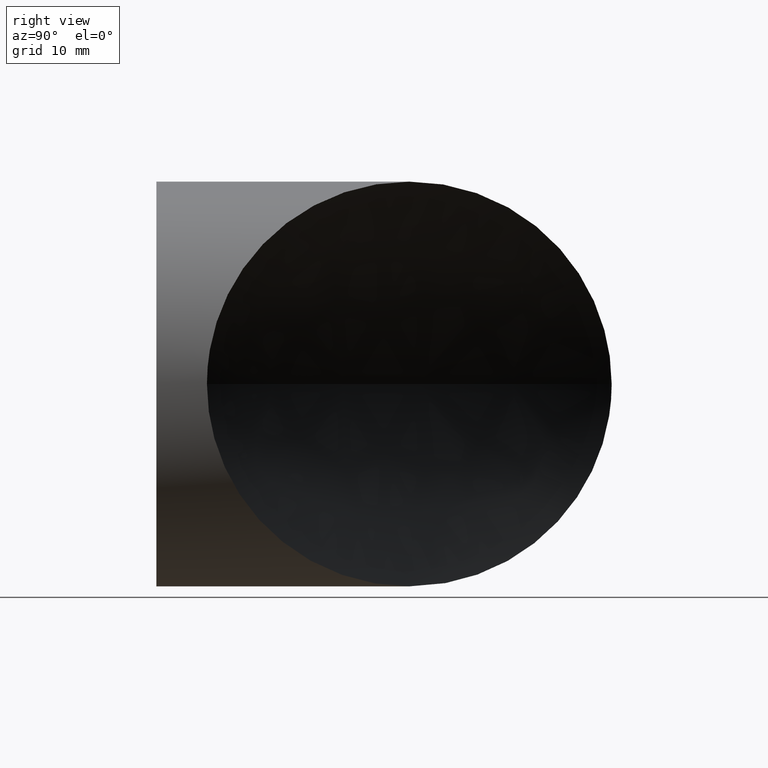
[diagram: clean part render]
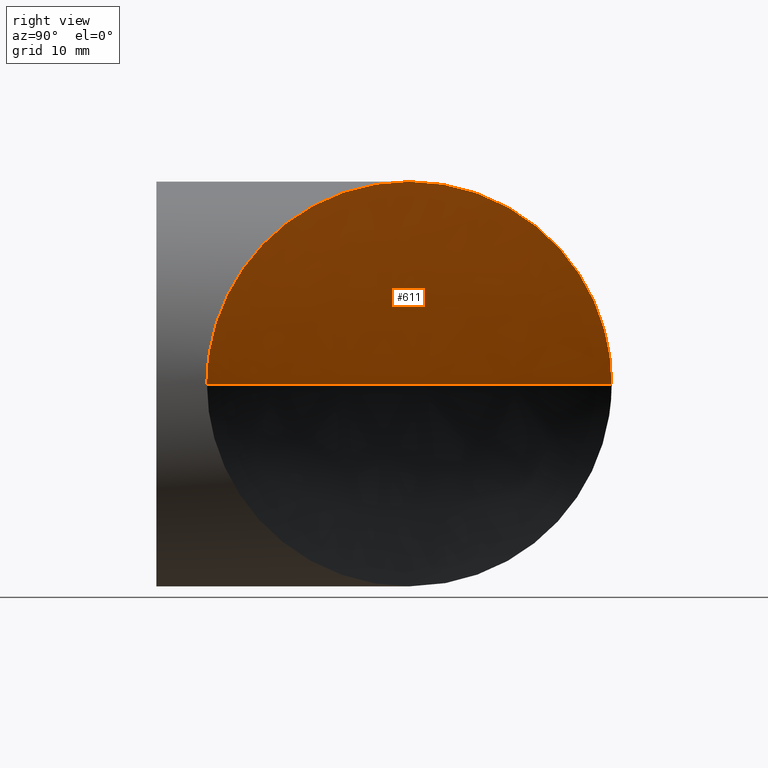
[diagram: same view with one face highlighted and labeled with its STEP entity id]
A machine part, right view. The second image highlights one B-rep face of the part: STEP entity #611.
In plain terms, the highlighted face is a freeform B-spline surface patch.
Its self-contained STEP definition (entity closure, byte-faithful):
#9 = B_SPLINE_CURVE_WITH_KNOTS ( 'NONE', 3,
 ( #354, #220, #367, #719, #223, #716, #96, #440, #579, #582, #493, #296, #651, #165, #859, #99, #105, #497, #161, #573, #168, #292, #29, #570, #435, #229, #442, #158, #37, #505, #854, #42 ),
 .UNSPECIFIED., .F., .F.,
 ( 4, 2, 2, 2, 2, 2, 2, 2, 2, 2, 2, 2, 2, 2, 2, 4 ),
 ( 0.04810272725894961660, 0.04960341340592316906, 0.05110409955289672151, 0.05410547184684383337, 0.05560615799381738583, 0.05710684414079093829, 0.06010821643473805015, 0.06160890258171160261, 0.06310958872868516201, 0.06611096102263225305, 0.07211370561052643513, 0.07811645019842061721, 0.08411919478631479929, 0.08712056708026189034, 0.09012193937420898138, 0.09612468396210317734 ),
 .UNSPECIFIED. ) ;
#29 = CARTESIAN_POINT ( 'NONE',  ( -13.85126286655956562, 45.60126286669613904, 21.34471803107064858 ) ) ;
#37 = CARTESIAN_POINT ( 'NONE',  ( -4.965716845980086447, 36.71571684611458153, 24.92019169298241721 ) ) ;
#42 = CARTESIAN_POINT ( 'NONE',  ( -3.679782173415781046E-12, 31.75000000013650236, 25.39999999999956160 ) ) ;
#44 = CARTESIAN_POINT ( 'NONE',  ( 15.75322996235737527, 15.99677003777224016, 19.94088469936381713 ) ) ;
#52 = FACE_OUTER_BOUND ( 'NONE', #759, .T. ) ;
#54 = CARTESIAN_POINT ( 'NONE',  ( 3.574495887741338418, 28.17550411239097485, 25.15748655172640724 ) ) ;
#96 = CARTESIAN_POINT ( 'NONE',  ( -24.91912955028560006, 56.66912955042496947, 5.016703429671586001 ) ) ;
#99 = CARTESIAN_POINT ( 'NONE',  ( -21.83922973555702995, 53.58922973569545434, 12.97751472815525453 ) ) ;
#105 = CARTESIAN_POINT ( 'NONE',  ( -21.60348923600461291, 53.35348923614303374, 13.36597650318335084 ) ) ;
#107 = CARTESIAN_POINT ( 'NONE',  ( 23.67062844458222770, 8.079371555545424854, 9.224653027086247903 ) ) ;
#117 = CARTESIAN_POINT ( 'NONE',  ( 17.59307431041942138, 14.15692568970981036, 18.39065751051364117 ) ) ;
#120 = CARTESIAN_POINT ( 'NONE',  ( 15.12322275978768715, 16.62677724034237770, 20.42218853992491745 ) ) ;
#138 = B_SPLINE_CURVE_WITH_KNOTS ( 'NONE', 2,
 ( #776, #563, #844 ),
 .UNSPECIFIED., .F., .F.,
 ( 3, 3 ),
 ( 0.4955453675796981927, 0.4973272205478184715 ),
 .UNSPECIFIED. ) ;
#158 = CARTESIAN_POINT ( 'NONE',  ( -5.671297475159705392, 37.42129747529374839, 24.76944659085237888 ) ) ;
#161 = CARTESIAN_POINT ( 'NONE',  ( -20.36696140388770004, 52.11696140402510480, 15.20119821662446391 ) ) ;
#165 = CARTESIAN_POINT ( 'NONE',  ( -22.50743737487555407, 54.25743737504247832, 11.78087464265349027 ) ) ;
#168 = CARTESIAN_POINT ( 'NONE',  ( -17.60734394690912197, 49.35734394704684291, 18.37816237363568206 ) ) ;
#171 = CARTESIAN_POINT ( 'NONE',  ( 13.17241457465186194, 18.57758542547887259, 21.72089280077187823 ) ) ;
#181 = CARTESIAN_POINT ( 'NONE',  ( -3.679782173415781046E-12, 31.75000000013650236, 25.39999999999956160 ) ) ;
#185 = CARTESIAN_POINT ( 'NONE',  ( 2.966278871152168357E-13, 25.32334280013104433, 8.938447513201134953 ) ) ;
#191 = CARTESIAN_POINT ( 'NONE',  ( 28.31782351588477908, 6.121857200128061116, 19.74345442902858849 ) ) ;
#205 = B_SPLINE_CURVE_WITH_KNOTS ( 'NONE', 3,
 ( #181, #520, #594, #513, #54, #523, #370, #871, #454, #675, #171, #516, #301, #120, #44, #117, #793, #374, #314, #449, #671, #511, #864, #308, #589, #869, #107, #881, #241, #804, #666, #232, #385, #600 ),
 .UNSPECIFIED., .F., .F.,
 ( 4, 2, 2, 2, 2, 2, 2, 2, 2, 2, 2, 2, 2, 2, 2, 2, 4 ),
 ( 0.09612468396210317734, 0.09912765318118503532, 0.1021306224002669072, 0.1081365608384306232, 0.1141424992765943391, 0.1156439838861352820, 0.1171454684956762110, 0.1201484377147580551, 0.1261543761529217711, 0.1276558607624626862, 0.1291573453720036013, 0.1321603145910854593, 0.1336617992006263744, 0.1351632838101672895, 0.1381662530292491475, 0.1411692222483309778, 0.1441721914674128358 ),
 .UNSPECIFIED. ) ;
#210 = ORIENTED_EDGE ( 'NONE', *, *, #526, .F. ) ;
#220 = CARTESIAN_POINT ( 'NONE',  ( -25.40000000000053859, 57.15000000013955628, 0.5044304829905095211 ) ) ;
#223 = CARTESIAN_POINT ( 'NONE',  ( -25.27816902003166533, 57.02816902017107736, 2.535475448995170744 ) ) ;
#229 = CARTESIAN_POINT ( 'NONE',  ( -7.783134573734113104, 39.53313457386905583, 24.18932817132085233 ) ) ;
#232 = CARTESIAN_POINT ( 'NONE',  ( 25.34003501377293333, 6.409964986354879990, 2.019679683124773639 ) ) ;
#241 = CARTESIAN_POINT ( 'NONE',  ( 24.45451196593779741, 7.295488034191129678, 6.935761289249204431 ) ) ;
#251 = CARTESIAN_POINT ( 'NONE',  ( -24.23532341040234428, 57.53145720013551312, 22.30292983662063477 ) ) ;
#262 = CARTESIAN_POINT ( 'NONE',  ( 5.624840870854797004E-13, 25.32334280013105143, -3.021888295151597958E-12 ) ) ;
#292 = CARTESIAN_POINT ( 'NONE',  ( -15.13432881798669172, 46.88432881812384778, 20.46283226548887413 ) ) ;
#296 = CARTESIAN_POINT ( 'NONE',  ( -23.50350774278652111, 55.25350774292535760, 9.678279500984862338 ) ) ;
#301 = CARTESIAN_POINT ( 'NONE',  ( 14.15460011605796176, 17.59539988407230737, 21.09411549236201111 ) ) ;
#308 = CARTESIAN_POINT ( 'NONE',  ( 22.91856478369641081, 8.831435216432451440, 10.95957008674894340 ) ) ;
#314 = CARTESIAN_POINT ( 'NONE',  ( 20.36646652801895030, 11.38353347211029742, 15.18420568538931725 ) ) ;
#320 = CARTESIAN_POINT ( 'NONE',  ( 3.498023448307980399, 25.32334280013105143, 26.43032721422789066 ) ) ;
#324 = VERTEX_POINT ( 'NONE', #754 ) ;
#354 = CARTESIAN_POINT ( 'NONE',  ( -25.39999999999913527, 57.15000000013858994, -3.847054410609410425E-12 ) ) ;
#367 = CARTESIAN_POINT ( 'NONE',  ( -25.38498825607575782, 57.13498825621493182, 1.010564004994066067 ) ) ;
#370 = CARTESIAN_POINT ( 'NONE',  ( 7.093618743404350724, 24.65638125672682079, 24.43274036757645362 ) ) ;
#373 =( BOUNDED_SURFACE ( )  B_SPLINE_SURFACE ( 2, 3, ( 
 ( #686, #251, #608, #682 ),
 ( #320, #807, #185, #262 ),
 ( #191, #691, #755, #752 ) ),
 .UNSPECIFIED., .F., .F., .F. ) 
 B_SPLINE_SURFACE_WITH_KNOTS ( ( 3, 3 ),
 ( 4, 4 ),
 ( 0.4955346764618894784, 0.4973379116656275745 ),
 ( 0.0000000000000000000, 1.000000000000000000 ),
 .UNSPECIFIED. ) 
 GEOMETRIC_REPRESENTATION_ITEM ( )  RATIONAL_B_SPLINE_SURFACE ( (
 ( 1.000000000000000000, 0.9942368622409268886, 0.9942368622409268886, 1.000000000000000000),
 ( 1.000000000000000000, 0.9942368622409268886, 0.9942368622409268886, 1.000000000000000000),
 ( 1.000000000000000000, 0.9942368622409268886, 0.9942368622409268886, 1.000000000000000000) ) ) 
 REPRESENTATION_ITEM ( '' )  SURFACE ( )  );
#374 = CARTESIAN_POINT ( 'NONE',  ( 20.10158260010981124, 11.64841740001844350, 15.53295033665355973 ) ) ;
#385 = CARTESIAN_POINT ( 'NONE',  ( 25.39999999999913172, 6.350000000128638078, 1.008915357866120521 ) ) ;
#402 = VERTEX_POINT ( 'NONE', #763 ) ;
#435 = CARTESIAN_POINT ( 'NONE',  ( -9.862800616185486646, 41.61280061632085392, 23.45310829498362182 ) ) ;
#440 = CARTESIAN_POINT ( 'NONE',  ( -24.57160009191056815, 56.32160009204986295, 6.452832837947831912 ) ) ;
#442 = CARTESIAN_POINT ( 'NONE',  ( -7.079510007500359414, 38.82951000763470972, 24.40429547277576461 ) ) ;
#449 = CARTESIAN_POINT ( 'NONE',  ( 20.87945820685417786, 10.87054179327496328, 14.47070440999178587 ) ) ;
#454 = CARTESIAN_POINT ( 'NONE',  ( 11.18778706063964101, 20.56221293949156603, 22.85407206432742200 ) ) ;
#493 = CARTESIAN_POINT ( 'NONE',  ( -24.00169820279068844, 55.75169820292964573, 8.325231285724797203 ) ) ;
#497 = CARTESIAN_POINT ( 'NONE',  ( -20.87748549290971667, 52.62748549304797052, 14.49451274477170415 ) ) ;
#505 = CARTESIAN_POINT ( 'NONE',  ( -2.844736194573056043, 34.59473619470711014, 25.28091507878944455 ) ) ;
#511 = CARTESIAN_POINT ( 'NONE',  ( 21.85001223646394664, 9.899987763665203389, 12.98188855473107317 ) ) ;
#513 = CARTESIAN_POINT ( 'NONE',  ( 2.858770735339183577, 28.89122926479362974, 25.24882967334723105 ) ) ;
#516 = CARTESIAN_POINT ( 'NONE',  ( 13.82786354782251159, 17.92213645230806662, 21.30961941217922728 ) ) ;
#520 = CARTESIAN_POINT ( 'NONE',  ( 0.7129421596533628280, 31.03705784047942373, 25.40000000000033964 ) ) ;
#523 = CARTESIAN_POINT ( 'NONE',  ( 5.698947039455231511, 26.05105296067662835, 24.79408406149674349 ) ) ;
#526 = EDGE_CURVE ( 'NONE', #324, #402, #138, .T. ) ;
#563 = CARTESIAN_POINT ( 'NONE',  ( -6.144390551909850728E-12, 25.40000000014021353, 0.0000000000000000000 ) ) ;
#570 = CARTESIAN_POINT ( 'NONE',  ( -11.21629007288617252, 42.96629007302217929, 22.83964333840000904 ) ) ;
#573 = CARTESIAN_POINT ( 'NONE',  ( -18.76615306822982632, 50.51615306836688291, 17.20202532302719689 ) ) ;
#579 = CARTESIAN_POINT ( 'NONE',  ( -24.44232522460163182, 56.19232522474101188, 6.926193841206804258 ) ) ;
#582 = CARTESIAN_POINT ( 'NONE',  ( -24.15743513471778314, 55.90743513485711702, 7.862426548023886852 ) ) ;
#589 = CARTESIAN_POINT ( 'NONE',  ( 23.11608779369771227, 8.633912206431645586, 10.53705452662698328 ) ) ;
#594 = CARTESIAN_POINT ( 'NONE',  ( 1.427272103734051001, 30.32272789639907984, 25.37003871366447072 ) ) ;
#600 = CARTESIAN_POINT ( 'NONE',  ( 25.39999999999913527, 6.350000000128641631, 0.0000000000000000000 ) ) ;
#608 = CARTESIAN_POINT ( 'NONE',  ( -25.70479999999828991, 57.53145720013551312, 11.19987473404089506 ) ) ;
#611 = ADVANCED_FACE ( 'NONE', ( #52 ), #373, .T. ) ;
#642 = ORIENTED_EDGE ( 'NONE', *, *, #707, .T. ) ;
#651 = CARTESIAN_POINT ( 'NONE',  ( -23.12815982557397732, 54.87815982574102236, 10.54055032728061825 ) ) ;
#666 = CARTESIAN_POINT ( 'NONE',  ( 25.09710067349299578, 6.652899326634874377, 4.041289188640527108 ) ) ;
#671 = CARTESIAN_POINT ( 'NONE',  ( 21.12816750881976446, 10.62183249130954366, 14.10527043393879332 ) ) ;
#675 = CARTESIAN_POINT ( 'NONE',  ( 12.84298988542193953, 18.90701011470891046, 21.91716930012155728 ) ) ;
#682 = CARTESIAN_POINT ( 'NONE',  ( -25.70479999999796306, 57.53145720013552733, -3.799044412389207537E-12 ) ) ;
#686 = CARTESIAN_POINT ( 'NONE',  ( -21.32177661926881740, 57.53145720013552733, 33.11719999942719284 ) ) ;
#691 = CARTESIAN_POINT ( 'NONE',  ( 26.58085667392403195, 6.121857200128061116, 13.29631970307748645 ) ) ;
#707 = EDGE_CURVE ( 'NONE', #324, #785, #9, .T. ) ;
#716 = CARTESIAN_POINT ( 'NONE',  ( -25.09726571099221104, 56.84726571113159110, 4.037958997173835662 ) ) ;
#719 = CARTESIAN_POINT ( 'NONE',  ( -25.32415586706379074, 57.07415586720293277, 2.026326229892875919 ) ) ;
#730 = CARTESIAN_POINT ( 'NONE',  ( -3.679782173415781046E-12, 31.75000000013650236, 25.39999999999956160 ) ) ;
#752 = CARTESIAN_POINT ( 'NONE',  ( 25.70479999999908927, 6.121857200128061116, -2.255140518769849223E-12 ) ) ;
#754 = CARTESIAN_POINT ( 'NONE',  ( -25.39999999999913527, 57.15000000013858994, -3.847054410609410425E-12 ) ) ;
#755 = CARTESIAN_POINT ( 'NONE',  ( 25.70479999999888676, 6.121857200128061116, 6.677020292361366849 ) ) ;
#759 = EDGE_LOOP ( 'NONE', ( #210, #642, #808 ) ) ;
#763 = CARTESIAN_POINT ( 'NONE',  ( 25.39999999999913527, 6.350000000128641631, 0.0000000000000000000 ) ) ;
#776 = CARTESIAN_POINT ( 'NONE',  ( -25.39999999999913527, 57.15000000013858994, -3.847054410609410425E-12 ) ) ;
#783 = EDGE_CURVE ( 'NONE', #785, #402, #205, .T. ) ;
#785 = VERTEX_POINT ( 'NONE', #730 ) ;
#793 = CARTESIAN_POINT ( 'NONE',  ( 18.75366693860866363, 12.99633306151988243, 17.21739479120811112 ) ) ;
#804 = CARTESIAN_POINT ( 'NONE',  ( 24.91773559159826590, 6.832264408530554611, 5.023384629991958228 ) ) ;
#807 = CARTESIAN_POINT ( 'NONE',  ( 1.172766631760846501, 25.32334280013104433, 17.79962476984906061 ) ) ;
#808 = ORIENTED_EDGE ( 'NONE', *, *, #783, .T. ) ;
#844 = CARTESIAN_POINT ( 'NONE',  ( 25.39999999999913527, 6.350000000128641631, 0.0000000000000000000 ) ) ;
#854 = CARTESIAN_POINT ( 'NONE',  ( -1.425126059627539910, 33.17512605976079243, 25.40000000000005542 ) ) ;
#859 = CARTESIAN_POINT ( 'NONE',  ( -22.29087400770634986, 54.04087400784487016, 12.18543310409961755 ) ) ;
#864 = CARTESIAN_POINT ( 'NONE',  ( 22.29898126052409424, 9.451018739604913677, 12.19699092670377638 ) ) ;
#869 = CARTESIAN_POINT ( 'NONE',  ( 23.49180749686719949, 8.258192503262073103, 9.670471214640192770 ) ) ;
#871 = CARTESIAN_POINT ( 'NONE',  ( 9.838007526098454747, 21.91199247403213235, 23.46256244877373476 ) ) ;
#881 = CARTESIAN_POINT ( 'NONE',  ( 24.17058905248792300, 7.579410947639630081, 7.866010588745353971 ) ) ;